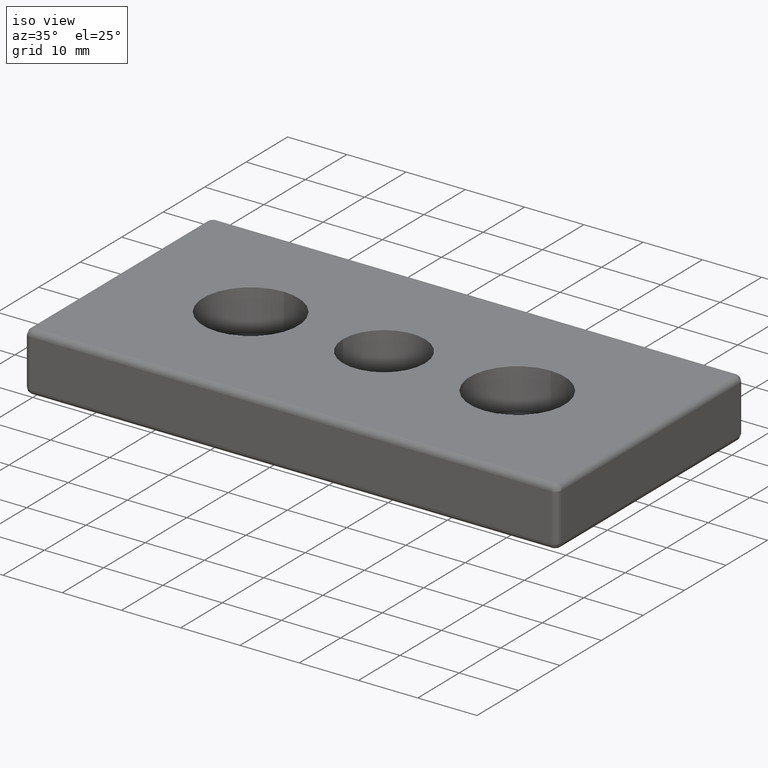
[diagram: clean part render]
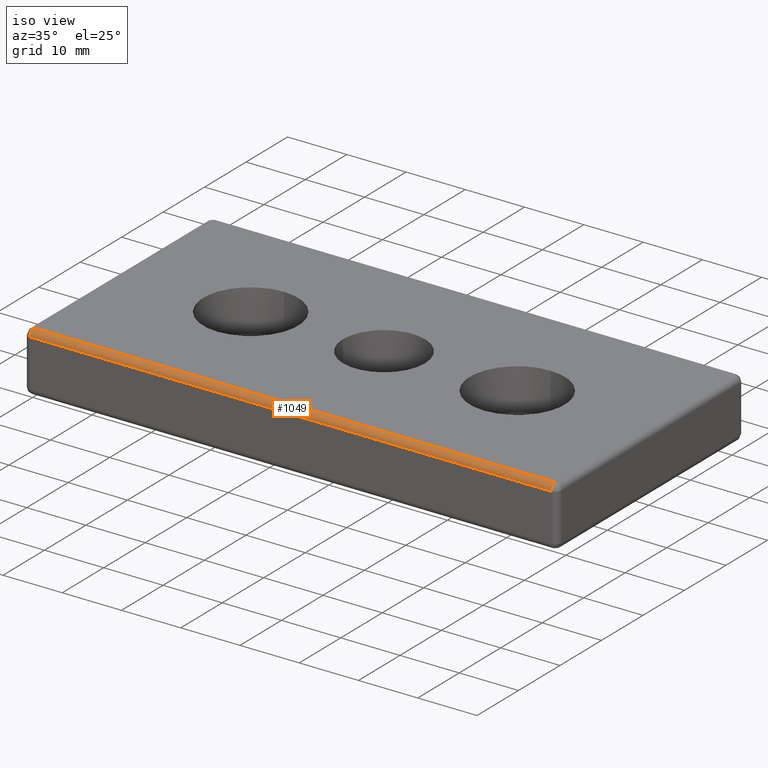
[diagram: same view with one face highlighted and labeled with its STEP entity id]
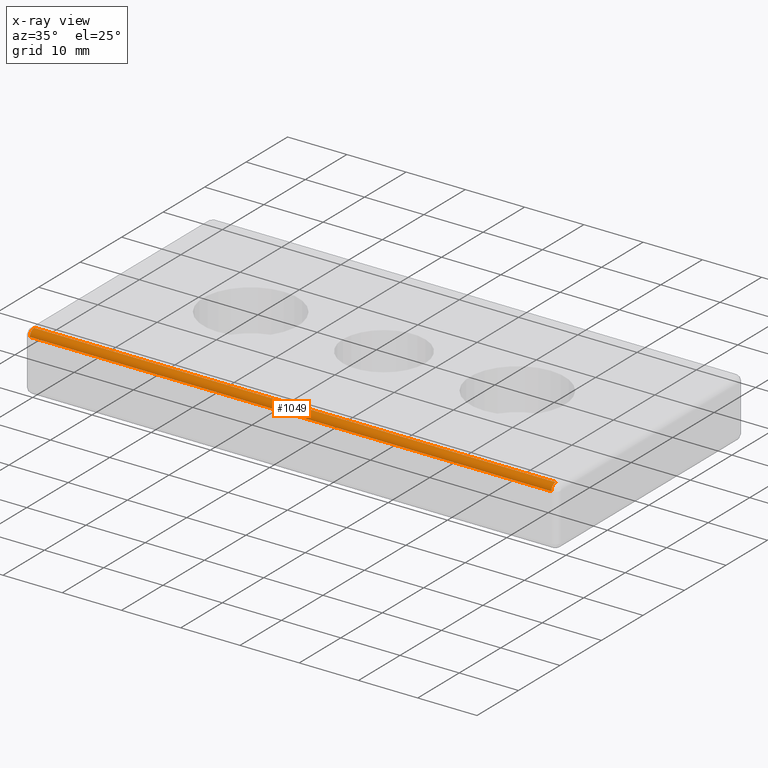
[diagram: x-ray of the same camera — body ghosted, the highlighted face saturated]
A machine part, iso view. The second image highlights one B-rep face of the part: STEP entity #1049.
The next image is the same camera in x-ray: the body ghosted, the highlighted face saturated — about 0% of this face is hidden behind the body in this view.
In plain terms, the highlighted cylindrical surface (edge-blend (fillet) strip) has radius 1 mm, axis along (-1, 0, 0).
Its self-contained STEP definition (entity closure, byte-faithful):
#217=CARTESIAN_POINT('',(-0.707106781186550,-22.499999999999993,8.707106781186552));
#218=VERTEX_POINT('',#217);
#219=CARTESIAN_POINT('',(-88.707106781186482,-22.499999999999993,8.707106781186552));
#220=VERTEX_POINT('',#219);
#221=CARTESIAN_POINT('',(-0.707106781186546,-22.499999999999996,8.707106781186552));
#222=DIRECTION('',(-1.0,0.0,0.0));
#223=VECTOR('',#222,87.999999999999943);
#224=LINE('',#221,#223);
#225=EDGE_CURVE('',#218,#220,#224,.T.);
#449=CARTESIAN_POINT('',(-88.707106781186496,-21.499999999999993,9.707106781186552));
#450=VERTEX_POINT('',#449);
#457=CARTESIAN_POINT('',(-0.707106781186550,-21.499999999999993,9.707106781186552));
#458=VERTEX_POINT('',#457);
#459=CARTESIAN_POINT('',(-88.707106781186496,-21.499999999999993,9.707106781186552));
#460=DIRECTION('',(1.0,0.0,0.0));
#461=VECTOR('',#460,87.999999999999957);
#462=LINE('',#459,#461);
#463=EDGE_CURVE('',#450,#458,#462,.T.);
#968=CARTESIAN_POINT('',(-0.707106781186550,-21.499999999999993,8.707106781186552));
#969=DIRECTION('',(-1.0,0.0,0.0));
#970=DIRECTION('',(0.0,0.0,-1.0));
#971=AXIS2_PLACEMENT_3D('',#968,#969,#970);
#972=CIRCLE('',#971,1.0);
#973=EDGE_CURVE('',#218,#458,#972,.T.);
#1032=CARTESIAN_POINT('',(-0.707106771186546,-21.499999999999993,8.707106781186552));
#1033=DIRECTION('',(-1.0,0.0,0.0));
#1034=DIRECTION('',(0.0,0.707106781186548,-0.707106781186547));
#1035=AXIS2_PLACEMENT_3D('',#1032,#1033,#1034);
#1036=CYLINDRICAL_SURFACE('',#1035,1.0);
#1037=ORIENTED_EDGE('',*,*,#973,.T.);
#1038=ORIENTED_EDGE('',*,*,#463,.F.);
#1039=CARTESIAN_POINT('',(-88.707106781186496,-21.499999999999993,8.707106781186552));
#1040=DIRECTION('',(-1.0,0.0,0.0));
#1041=DIRECTION('',(0.0,0.0,1.0));
#1042=AXIS2_PLACEMENT_3D('',#1039,#1040,#1041);
#1043=CIRCLE('',#1042,1.0);
#1044=EDGE_CURVE('',#220,#450,#1043,.T.);
#1045=ORIENTED_EDGE('',*,*,#1044,.F.);
#1046=ORIENTED_EDGE('',*,*,#225,.F.);
#1047=EDGE_LOOP('',(#1037,#1038,#1045,#1046));
#1048=FACE_OUTER_BOUND('',#1047,.T.);
#1049=ADVANCED_FACE('',(#1048),#1036,.T.);